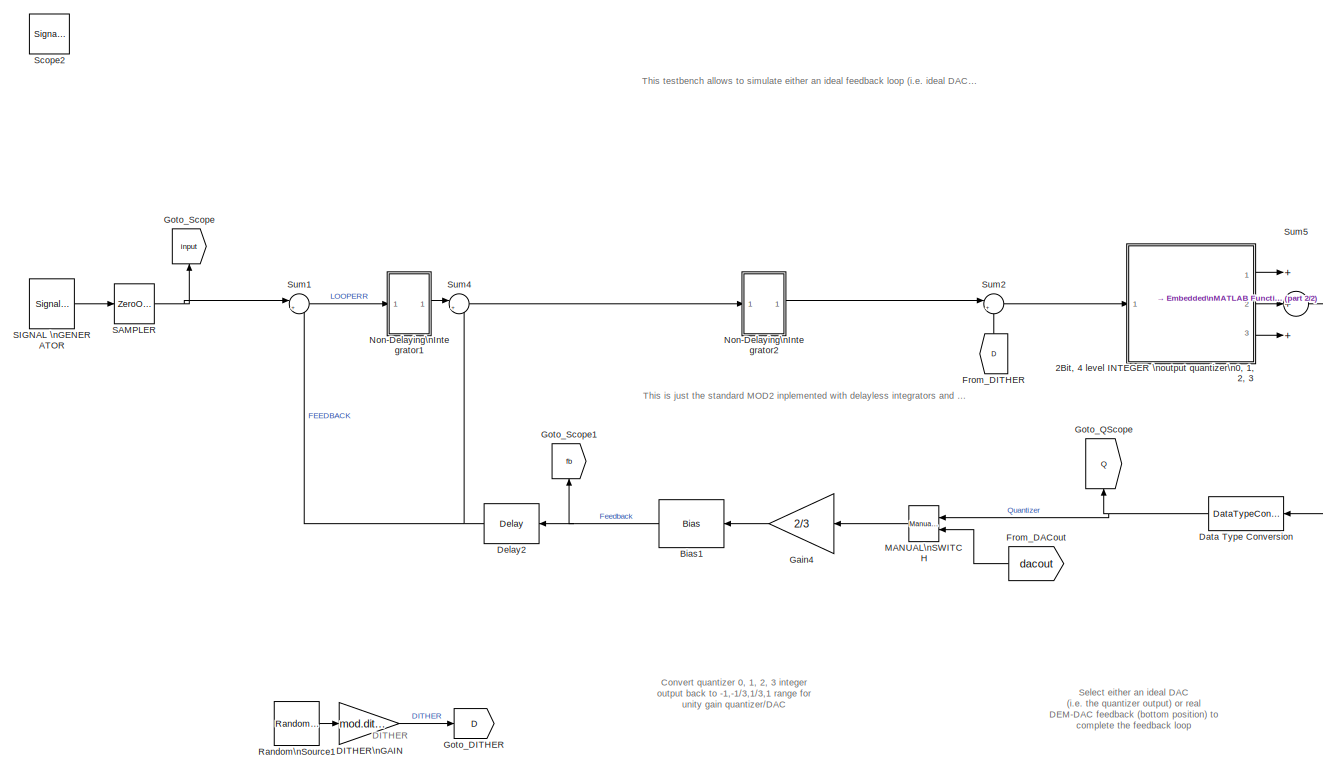
[diagram: root canvas - part 1/2, center side, full height]
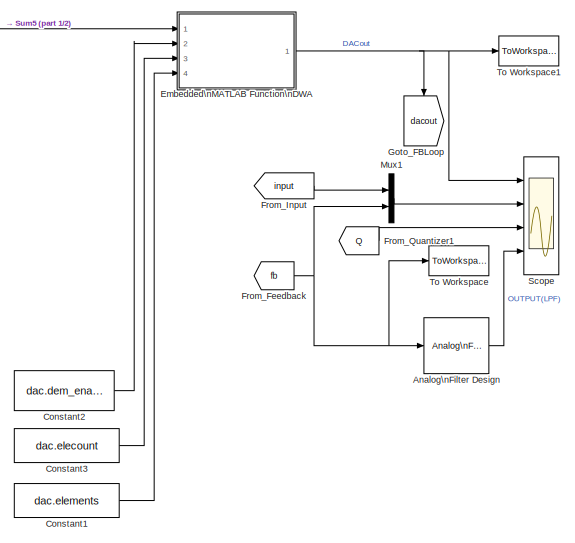
[diagram: root canvas - part 2/2, bottom right region]
MODEL mod2_2bit_DWA
KIND model
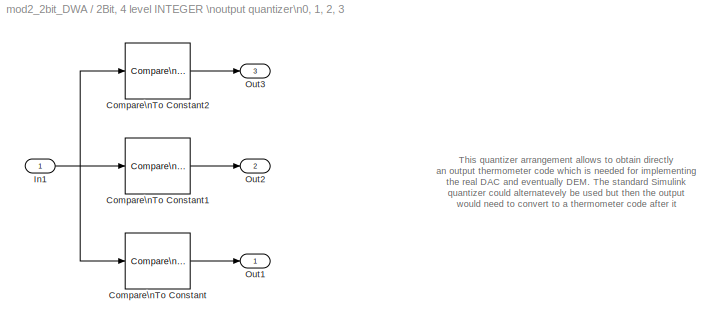
BLOCK [SubSystem] 2Bit, 4 level INTEGER  \noutput quantizer\n0, 1, 2, 3
  FunctionWithSeparateData = off
  MaskHideContents = off
  MinAlgLoopOccurrences = off
  Opaque = off
  Ports = [1, 3]
  PropExecContextOutsideSubsystem = off
  RTWSystemCode = Auto
  RequestExecContextInheritance = off
  SID = 106
BLOCK [Reference] 2Bit, 4 level INTEGER  \noutput quantizer\n0, 1, 2, 3/Compare\nTo Constant  REF=simulink/Logic and Bit\nOperations/Compare\nTo Constant
  OutDataTypeStr = uint8
  Ports = [1, 1]
  SID = 70
  SourceBlock = simulink/Logic and Bit\nOperations/Compare\nTo Constant
  SourceType = Compare To Constant
  ZeroCross = on
  const = -2/3
  relop = >=
BLOCK [Reference] 2Bit, 4 level INTEGER  \noutput quantizer\n0, 1, 2, 3/Compare\nTo Constant1  REF=simulink/Logic and Bit\nOperations/Compare\nTo Constant
  OutDataTypeStr = uint8
  Ports = [1, 1]
  SID = 71
  SourceBlock = simulink/Logic and Bit\nOperations/Compare\nTo Constant
  SourceType = Compare To Constant
  ZeroCross = on
  const = 0
  relop = >=
BLOCK [Reference] 2Bit, 4 level INTEGER  \noutput quantizer\n0, 1, 2, 3/Compare\nTo Constant2  REF=simulink/Logic and Bit\nOperations/Compare\nTo Constant
  OutDataTypeStr = uint8
  Ports = [1, 1]
  SID = 72
  SourceBlock = simulink/Logic and Bit\nOperations/Compare\nTo Constant
  SourceType = Compare To Constant
  ZeroCross = on
  const = 2/3
  relop = >=
BLOCK [Inport] 2Bit, 4 level INTEGER  \noutput quantizer\n0, 1, 2, 3/In1
  IconDisplay = Port number
  SID = 107
BLOCK [Outport] 2Bit, 4 level INTEGER  \noutput quantizer\n0, 1, 2, 3/Out1
  IconDisplay = Port number
  SID = 108
BLOCK [Outport] 2Bit, 4 level INTEGER  \noutput quantizer\n0, 1, 2, 3/Out2
  IconDisplay = Port number
  Port = 2
  SID = 126
BLOCK [Outport] 2Bit, 4 level INTEGER  \noutput quantizer\n0, 1, 2, 3/Out3
  IconDisplay = Port number
  Port = 3
  SID = 127
BLOCK [Reference] Analog\nFilter Design  REF=dsparch4/Analog\nFilter Design
  AttributesFormatString = Low-pass filter the loop output\\nto illustrate intuitively how the\\npulse density modulated +1/-1\\noutput stream does indeed capture\\nthe input signal
  N = 8
  Ports = [1, 1]
  Rp = 2
  Rs = 40
  SID = 272
  SourceBlock = dsparch4/Analog\nFilter Design
  SourceType = Analog Filter Design
  Whi = 80
  Wlo = pi*(Fs/OSR)
  filttype = Lowpass
  method = Butterworth
BLOCK [Bias] Bias1
  Bias = -1
  SID = 98
  SaturateOnIntegerOverflow = off
BLOCK [Constant] Constant1
  SID = 275
  SampleTime = 1/Fs
  Value = dac.elements
BLOCK [Constant] Constant2
  SID = 276
  SampleTime = 1/Fs
  Value = dac.dem_enable
BLOCK [Constant] Constant3
  SID = 281
  SampleTime = 1/Fs
  Value = dac.elecount
BLOCK [Gain] DITHER\nGAIN
  Gain = mod.dither
  OutDataTypeStr = Inherit: Inherit via internal rule
  ParamDataTypeStr = Inherit: Inherit via internal rule
  SID = 222
  SampleTime = 1/Fs
  SaturateOnIntegerOverflow = off
BLOCK [DataTypeConversion] Data Type Conversion
  RndMeth = Floor
  SID = 117
  SampleTime = 1/Fs
  SaturateOnIntegerOverflow = off
BLOCK [Reference] Delay2  REF=dspsigops/Delay
  InputProcessing = Columns as channels (frame based)
  Ports = [1, 1]
  SID = 69
  SourceBlock = dspsigops/Delay
  SourceType = Delay
  UserData = DataTag0
  UserDataPersistent = on
  delay = 1
  dif_ic_for_ch = off
  dif_ic_for_dly = off
  dly_unit = Samples
  ic = 0
  ic_detail = off
  reset_popup = None
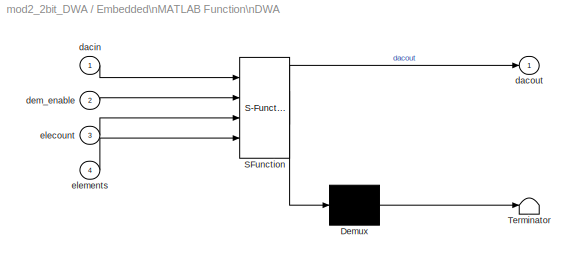
BLOCK [SubSystem] Embedded\nMATLAB Function\nDWA
  ErrorFcn = Stateflow.Translate.translate
  FunctionWithSeparateData = off
  MaskHideContents = off
  MinAlgLoopOccurrences = off
  Opaque = off
  PermitHierarchicalResolution = ExplicitOnly
  Ports = [4, 1]
  PropExecContextOutsideSubsystem = off
  RTWSystemCode = Auto
  RequestExecContextInheritance = off
  SFBlockType = MATLAB Function
  SID = 282
  TreatAsAtomicUnit = on
BLOCK [Demux] Embedded\nMATLAB Function\nDWA/ Demux 
  Outputs = 1
  Ports = [1, 1]
  SID = 282::84
BLOCK [S-Function] Embedded\nMATLAB Function\nDWA/ SFunction 
  EnableBusSupport = on
  FunctionName = sf_sfun
  PortCounts = [4 2]
  Ports = [4, 2]
  SID = 282::83
  Tag = Stateflow S-Function mod2_2bit_DWA 2
BLOCK [Terminator] Embedded\nMATLAB Function\nDWA/ Terminator 
  SID = 282::85
BLOCK [Inport] Embedded\nMATLAB Function\nDWA/dacin
  IconDisplay = Port number
  SID = 282::78
BLOCK [Outport] Embedded\nMATLAB Function\nDWA/dacout
  IconDisplay = Port number
  SID = 282::89
BLOCK [Inport] Embedded\nMATLAB Function\nDWA/dem_enable
  IconDisplay = Port number
  Port = 2
  SID = 282::86
BLOCK [Inport] Embedded\nMATLAB Function\nDWA/elecount
  IconDisplay = Port number
  Port = 3
  SID = 282::87
BLOCK [Inport] Embedded\nMATLAB Function\nDWA/elements
  IconDisplay = Port number
  Port = 4
  SID = 282::88
BLOCK [From] From_DACout
  GotoTag = dacout
  SID = 124
BLOCK [From] From_DITHER
  GotoTag = D
  SID = 93
BLOCK [From] From_Feedback
  GotoTag = fb
  SID = 123
BLOCK [From] From_Input
  GotoTag = input
  SID = 212
BLOCK [From] From_Quantizer1
  GotoTag = Q
  SID = 271
BLOCK [Gain] Gain4
  Gain = 2/3
  OutDataTypeStr = Inherit: Inherit via internal rule
  ParamDataTypeStr = Inherit: Inherit via internal rule
  SID = 99
  SampleTime = 1/Fs
  SaturateOnIntegerOverflow = off
BLOCK [Goto] Goto_DITHER
  GotoTag = D
  SID = 223
BLOCK [Goto] Goto_FBLoop
  GotoTag = dacout
  SID = 122
BLOCK [Goto] Goto_QScope
  GotoTag = Q
  SID = 269
BLOCK [Goto] Goto_Scope
  GotoTag = input
  SID = 211
BLOCK [Goto] Goto_Scope1
  GotoTag = fb
  SID = 270
BLOCK [Reference] MANUAL\nSWITCH  REF=simulink/Signal\nRouting/Manual Switch
  AttributesFormatString = Double click to\\nselect the desired\\ninput
  Ports = [2, 1]
  SID = 226
  SourceBlock = simulink/Signal\nRouting/Manual Switch
  SourceType = Manual Switch
  action = 0
  sw = 1
  varsize = off
BLOCK [Mux] Mux1
  DisplayOption = bar
  Inputs = 2
  Ports = [2, 1]
  SID = 210
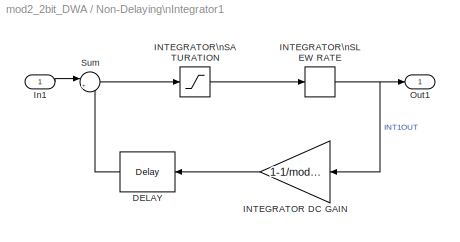
BLOCK [SubSystem] Non-Delaying\nIntegrator1
  FunctionWithSeparateData = off
  MaskHideContents = off
  MinAlgLoopOccurrences = off
  Opaque = off
  Ports = [1, 1]
  PropExecContextOutsideSubsystem = off
  RTWSystemCode = Auto
  RequestExecContextInheritance = off
  SID = 235
BLOCK [Reference] Non-Delaying\nIntegrator1/DELAY  REF=dspsigops/Delay
  InputProcessing = Inherited (this choice will be removed - see release notes)
  Ports = [1, 1]
  SID = 237
  SourceBlock = dspsigops/Delay
  SourceType = Delay
  UserData = DataTag1
  UserDataPersistent = on
  delay = 1
  dif_ic_for_ch = off
  dif_ic_for_dly = off
  dly_unit = Samples
  ic = 0
  ic_detail = off
  reset_popup = None
BLOCK [Gain] Non-Delaying\nIntegrator1/INTEGRATOR DC GAIN
  AttributesFormatString = Integrator leakage\\n(model finite integrator dc/LF\\ngain in analog modulators)
  Gain = 1-1/mod.igain1
  OutDataTypeStr = Inherit: Inherit via internal rule
  ParamDataTypeStr = Inherit: Inherit via internal rule
  SID = 240
  SaturateOnIntegerOverflow = off
BLOCK [Saturate] Non-Delaying\nIntegrator1/INTEGRATOR\nSATURATION
  AttributesFormatString = Real integrators will have\\noutput swing limits (analog\\nsignal headroom or digital\\naccumulator min/max values)
  InputPortMap = u0
  LowerLimit = -(mod.isat1)
  Ports = [1, 1]
  SID = 238
  UpperLimit = mod.isat1
BLOCK [RateLimiter] Non-Delaying\nIntegrator1/INTEGRATOR\nSLEW RATE
  AttributesFormatString = ...and\\nmay suffer from\\npoor slew rate
  FallingSlewLimit = -(mod.isr1)
  RisingSlewLimit = mod.isr1
  SID = 239
  SampleTimeMode = inherited
BLOCK [Inport] Non-Delaying\nIntegrator1/In1
  IconDisplay = Port number
  SID = 236
BLOCK [Outport] Non-Delaying\nIntegrator1/Out1
  IconDisplay = Port number
  SID = 242
BLOCK [Sum] Non-Delaying\nIntegrator1/Sum
  AttributesFormatString = Integrator\\nsummer
  IconShape = round
  InputSameDT = off
  Inputs = |++
  OutDataTypeStr = Inherit: Inherit via internal rule
  Ports = [2, 1]
  SID = 241
  SampleTime = 1/Fs
  SaturateOnIntegerOverflow = off
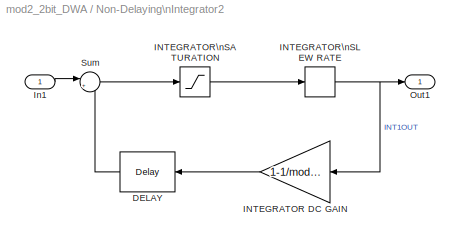
BLOCK [SubSystem] Non-Delaying\nIntegrator2
  FunctionWithSeparateData = off
  MaskHideContents = off
  MinAlgLoopOccurrences = off
  Opaque = off
  Ports = [1, 1]
  PropExecContextOutsideSubsystem = off
  RTWSystemCode = Auto
  RequestExecContextInheritance = off
  SID = 243
BLOCK [Reference] Non-Delaying\nIntegrator2/DELAY  REF=dspsigops/Delay
  InputProcessing = Inherited (this choice will be removed - see release notes)
  Ports = [1, 1]
  SID = 245
  SourceBlock = dspsigops/Delay
  SourceType = Delay
  UserData = DataTag2
  UserDataPersistent = on
  delay = 1
  dif_ic_for_ch = off
  dif_ic_for_dly = off
  dly_unit = Samples
  ic = 0
  ic_detail = off
  reset_popup = None
BLOCK [Gain] Non-Delaying\nIntegrator2/INTEGRATOR DC GAIN
  AttributesFormatString = Integrator leakage\\n(model finite integrator dc/LF\\ngain in analog modulators)
  Gain = 1-1/mod.igain2
  OutDataTypeStr = Inherit: Inherit via internal rule
  ParamDataTypeStr = Inherit: Inherit via internal rule
  SID = 248
  SaturateOnIntegerOverflow = off
BLOCK [Saturate] Non-Delaying\nIntegrator2/INTEGRATOR\nSATURATION
  AttributesFormatString = Real integrators will have\\noutput swing limits (analog\\nsignal headroom or digital\\naccumulator min/max values)
  InputPortMap = u0
  LowerLimit = -(mod.isat2)
  Ports = [1, 1]
  SID = 246
  UpperLimit = mod.isat2
BLOCK [RateLimiter] Non-Delaying\nIntegrator2/INTEGRATOR\nSLEW RATE
  AttributesFormatString = ...and\\nmay suffer from\\npoor slew rate
  FallingSlewLimit = -(mod.isr2)
  RisingSlewLimit = mod.isr2
  SID = 247
  SampleTimeMode = inherited
BLOCK [Inport] Non-Delaying\nIntegrator2/In1
  IconDisplay = Port number
  SID = 244
BLOCK [Outport] Non-Delaying\nIntegrator2/Out1
  IconDisplay = Port number
  SID = 250
BLOCK [Sum] Non-Delaying\nIntegrator2/Sum
  AttributesFormatString = Integrator\\nsummer
  IconShape = round
  InputSameDT = off
  Inputs = |++
  OutDataTypeStr = Inherit: Inherit via internal rule
  Ports = [2, 1]
  SID = 249
  SampleTime = 1/Fs
  SaturateOnIntegerOverflow = off
BLOCK [Reference] Random\nSource1  REF=dspsrcs4/Random\nSource
  CltLength = 12
  DataType = Double
  IsInherit = off
  MaxVal = 1
  MeanVal = 0
  MinVal = -1
  NormMethod = Ziggurat
  OutComplex = Real
  Ports = [0, 1]
  RepMode = Not repeatable
  SID = 224
  SampFrame = 1
  SampMode = Discrete
  SampTime = 1/Fs
  SourceBlock = dspsrcs4/Random\nSource
  SourceType = Random Source
  SrcType = Uniform
  UserData = DataTag3
  UserDataPersistent = on
  VarVal = 1
  rawSeed = 1
BLOCK [ZeroOrderHold] SAMPLER
  SID = 265
  SampleTime = 1/Fs
BLOCK [SignalGenerator] SIGNAL \nGENERATOR
  Amplitude = sinamp
  Frequency = sinfreq
  Ports = [0, 1]
  SID = 264
  VectorParams1D = off
BLOCK [Scope] Scope
  DataFormat = StructureWithTime
  Floating = off
  NumInputPorts = 4
  Ports = [4]
  SID = 80
  SampleTime = 0
  ShowLegends = off
  YMax = 3.2~1.1~3.2~1.1
  YMin = -0.2~-1.1~-0.2~-1.1
  ZoomMode = xonly
BLOCK [SignalViewerScope] Scope2
  IOType = viewer
  MaxDataPoints = 7500
  NumInputPorts = 5
  Ports = []
  RefreshTime = 0.035000
  SID = 206
  SaveName = ScopeData1
  ShowDataMarkers = off
  ShowLegends = off
  YMax = 5~5~5~5~5
  YMin = -5~-5~-5~-5~-5
  ZoomMode = xonly
BLOCK [Sum] Sum1
  AttributesFormatString = Modulator input\\nloop servo error (input - fbk)
  IconShape = round
  InputSameDT = off
  Inputs = |+-
  OutDataTypeStr = Inherit: Inherit via internal rule
  Ports = [2, 1]
  SID = 7
  SampleTime = 1/Fs
  SaturateOnIntegerOverflow = off
BLOCK [Sum] Sum2
  IconShape = round
  InputSameDT = off
  Inputs = |++
  OutDataTypeStr = Inherit: Inherit via internal rule
  Ports = [2, 1]
  SID = 30
  SaturateOnIntegerOverflow = off
BLOCK [Sum] Sum4
  IconShape = round
  InputSameDT = off
  Inputs = |+-
  OutDataTypeStr = Inherit: Inherit via internal rule
  Ports = [2, 1]
  SID = 64
  SaturateOnIntegerOverflow = off
BLOCK [Sum] Sum5
  InputSameDT = off
  Inputs = +++
  OutDataTypeStr = Inherit: Inherit via internal rule
  Ports = [3, 1]
  SID = 129
  SampleTime = 1/Fs
  SaturateOnIntegerOverflow = off
BLOCK [ToWorkspace] To Workspace
  MaxDataPoints = inf
  Ports = [1]
  SID = 263
  SampleTime = -1
  VariableName = mod_out
BLOCK [ToWorkspace] To Workspace1
  MaxDataPoints = inf
  Ports = [1]
  SID = 91
  SampleTime = -1
  VariableName = DACout
ANNOTATION (root): DITHER \n\n\n\n\n\n
ANNOTATION (root): Select either an ideal DAC \n(i.e. the quantizer output) or real\nDEM-DAC feedback (bottom position) to \ncomplete the feedback loop
ANNOTATION (root): This is just the standard MOD2 inplemented with delayless integrators and a 2-bit quantizer/DAC \n\n\n\n\n\n\n\n\n\n\n\n\n\n
ANNOTATION (root): Convert quantizer 0, 1, 2, 3 integer\noutput back to -1,-1/3,1/3,1 range for\nunity gain quantizer/DAC
ANNOTATION (root): This testbench allows to simulate either an ideal feedback loop (i.e. ideal DAC) or a real DAC with Data Weighting Averaging DEM
ANNOTATION 2Bit, 4 level INTEGER  \noutput quantizer\n0, 1, 2, 3: This quantizer arrangement allows to obtain directly \nan output thermometer code which is needed for implementing\nthe real DAC and eventually DEM. The standard Simulink\nquantizer could alternatevely be used but then the output\nwould need to convert to a thermometer code after it
LINE 2Bit, 4 level INTEGER  \noutput quantizer\n0, 1, 2, 3/Compare\nTo Constant1:1 -> 2Bit, 4 level INTEGER  \noutput quantizer\n0, 1, 2, 3/Out2:1
LINE 2Bit, 4 level INTEGER  \noutput quantizer\n0, 1, 2, 3/Compare\nTo Constant2:1 -> 2Bit, 4 level INTEGER  \noutput quantizer\n0, 1, 2, 3/Out3:1
LINE 2Bit, 4 level INTEGER  \noutput quantizer\n0, 1, 2, 3/Compare\nTo Constant:1 -> 2Bit, 4 level INTEGER  \noutput quantizer\n0, 1, 2, 3/Out1:1
NET 2Bit, 4 level INTEGER  \noutput quantizer\n0, 1, 2, 3/In1:1 -> 2Bit, 4 level INTEGER  \noutput quantizer\n0, 1, 2, 3/Compare\nTo Constant1:1, 2Bit, 4 level INTEGER  \noutput quantizer\n0, 1, 2, 3/Compare\nTo Constant2:1, 2Bit, 4 level INTEGER  \noutput quantizer\n0, 1, 2, 3/Compare\nTo Constant:1
LINE 2Bit, 4 level INTEGER  \noutput quantizer\n0, 1, 2, 3:1 -> Sum5:1
LINE 2Bit, 4 level INTEGER  \noutput quantizer\n0, 1, 2, 3:2 -> Sum5:2
LINE 2Bit, 4 level INTEGER  \noutput quantizer\n0, 1, 2, 3:3 -> Sum5:3
LINE Analog\nFilter Design:1 -> Scope:4
NET Bias1:1 -> Delay2:1, Goto_Scope1:1
LINE Constant1:1 -> Embedded\nMATLAB Function\nDWA:4
LINE Constant2:1 -> Embedded\nMATLAB Function\nDWA:2
LINE Constant3:1 -> Embedded\nMATLAB Function\nDWA:3
LINE DITHER\nGAIN:1 -> Goto_DITHER:1
NET Data Type Conversion:1 -> Goto_QScope:1, MANUAL\nSWITCH:1
NET Delay2:1 -> Sum1:2, Sum4:2
LINE Embedded\nMATLAB Function\nDWA/ Demux :1 -> Embedded\nMATLAB Function\nDWA/ Terminator :1
LINE Embedded\nMATLAB Function\nDWA/ SFunction :1 -> Embedded\nMATLAB Function\nDWA/ Demux :1
LINE Embedded\nMATLAB Function\nDWA/ SFunction :2 -> Embedded\nMATLAB Function\nDWA/dacout:1
LINE Embedded\nMATLAB Function\nDWA/dacin:1 -> Embedded\nMATLAB Function\nDWA/ SFunction :1
LINE Embedded\nMATLAB Function\nDWA/dem_enable:1 -> Embedded\nMATLAB Function\nDWA/ SFunction :2
LINE Embedded\nMATLAB Function\nDWA/elecount:1 -> Embedded\nMATLAB Function\nDWA/ SFunction :3
LINE Embedded\nMATLAB Function\nDWA/elements:1 -> Embedded\nMATLAB Function\nDWA/ SFunction :4
NET Embedded\nMATLAB Function\nDWA:1 -> Goto_FBLoop:1, Scope:1, To Workspace1:1
LINE From_DACout:1 -> MANUAL\nSWITCH:2
LINE From_DITHER:1 -> Sum2:2
NET From_Feedback:1 -> Analog\nFilter Design:1, Mux1:2, To Workspace:1
LINE From_Input:1 -> Mux1:1
LINE From_Quantizer1:1 -> Scope:3
LINE Gain4:1 -> Bias1:1
LINE MANUAL\nSWITCH:1 -> Gain4:1
LINE Mux1:1 -> Scope:2
LINE Non-Delaying\nIntegrator1/DELAY:1 -> Non-Delaying\nIntegrator1/Sum:2
LINE Non-Delaying\nIntegrator1/INTEGRATOR DC GAIN:1 -> Non-Delaying\nIntegrator1/DELAY:1
LINE Non-Delaying\nIntegrator1/INTEGRATOR\nSATURATION:1 -> Non-Delaying\nIntegrator1/INTEGRATOR\nSLEW RATE:1
NET Non-Delaying\nIntegrator1/INTEGRATOR\nSLEW RATE:1 -> Non-Delaying\nIntegrator1/INTEGRATOR DC GAIN:1, Non-Delaying\nIntegrator1/Out1:1
LINE Non-Delaying\nIntegrator1/In1:1 -> Non-Delaying\nIntegrator1/Sum:1
LINE Non-Delaying\nIntegrator1/Sum:1 -> Non-Delaying\nIntegrator1/INTEGRATOR\nSATURATION:1
LINE Non-Delaying\nIntegrator1:1 -> Sum4:1
LINE Non-Delaying\nIntegrator2/DELAY:1 -> Non-Delaying\nIntegrator2/Sum:2
LINE Non-Delaying\nIntegrator2/INTEGRATOR DC GAIN:1 -> Non-Delaying\nIntegrator2/DELAY:1
LINE Non-Delaying\nIntegrator2/INTEGRATOR\nSATURATION:1 -> Non-Delaying\nIntegrator2/INTEGRATOR\nSLEW RATE:1
NET Non-Delaying\nIntegrator2/INTEGRATOR\nSLEW RATE:1 -> Non-Delaying\nIntegrator2/INTEGRATOR DC GAIN:1, Non-Delaying\nIntegrator2/Out1:1
LINE Non-Delaying\nIntegrator2/In1:1 -> Non-Delaying\nIntegrator2/Sum:1
LINE Non-Delaying\nIntegrator2/Sum:1 -> Non-Delaying\nIntegrator2/INTEGRATOR\nSATURATION:1
LINE Non-Delaying\nIntegrator2:1 -> Sum2:1
LINE Random\nSource1:1 -> DITHER\nGAIN:1
NET SAMPLER:1 -> Goto_Scope:1, Sum1:1
LINE SIGNAL \nGENERATOR:1 -> SAMPLER:1
LINE Sum1:1 -> Non-Delaying\nIntegrator1:1
LINE Sum2:1 -> 2Bit, 4 level INTEGER  \noutput quantizer\n0, 1, 2, 3:1
LINE Sum4:1 -> Non-Delaying\nIntegrator2:1
NET Sum5:1 -> Data Type Conversion:1, Embedded\nMATLAB Function\nDWA:1
note: NET lines group one-source signal fan-out (src -> all destinations, sorted); 1:1 wires keep LINE
CHART Embedded\nMATLAB Function\nDWA states=1 transitions=1
  STATE_LABEL 'eML_blk_kernel()'
